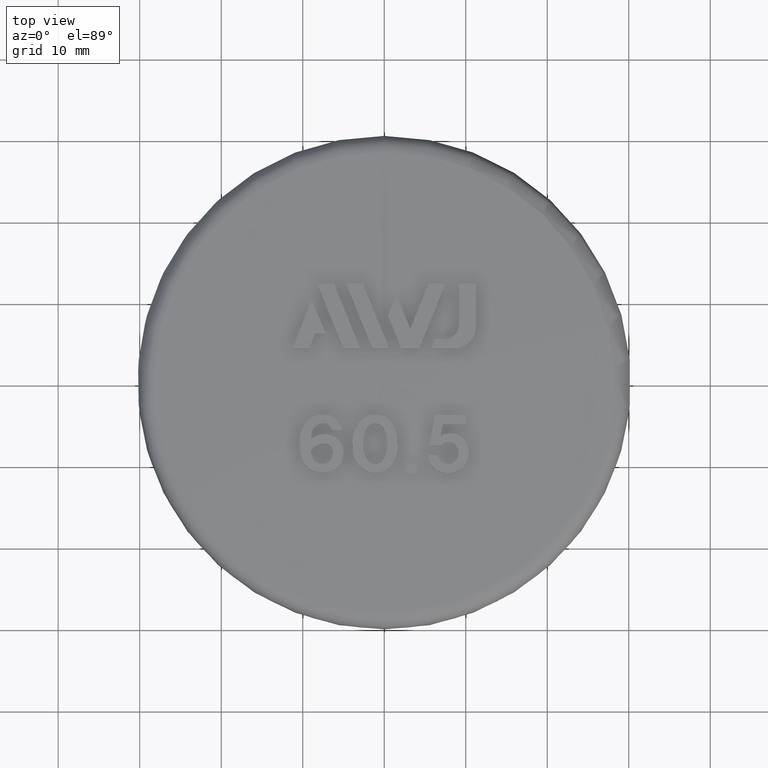
[diagram: clean part render]
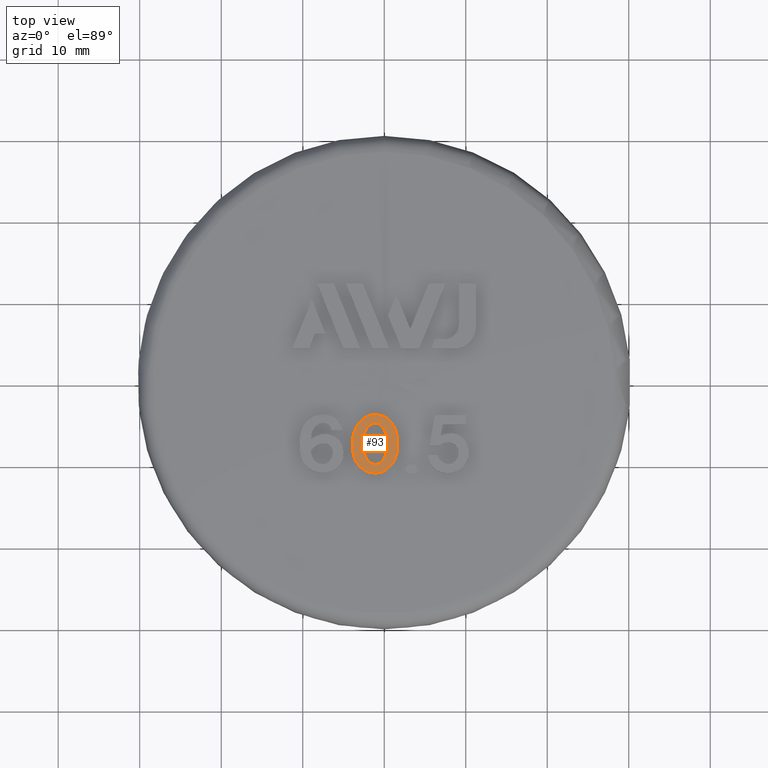
[diagram: same view with one face highlighted and labeled with its STEP entity id]
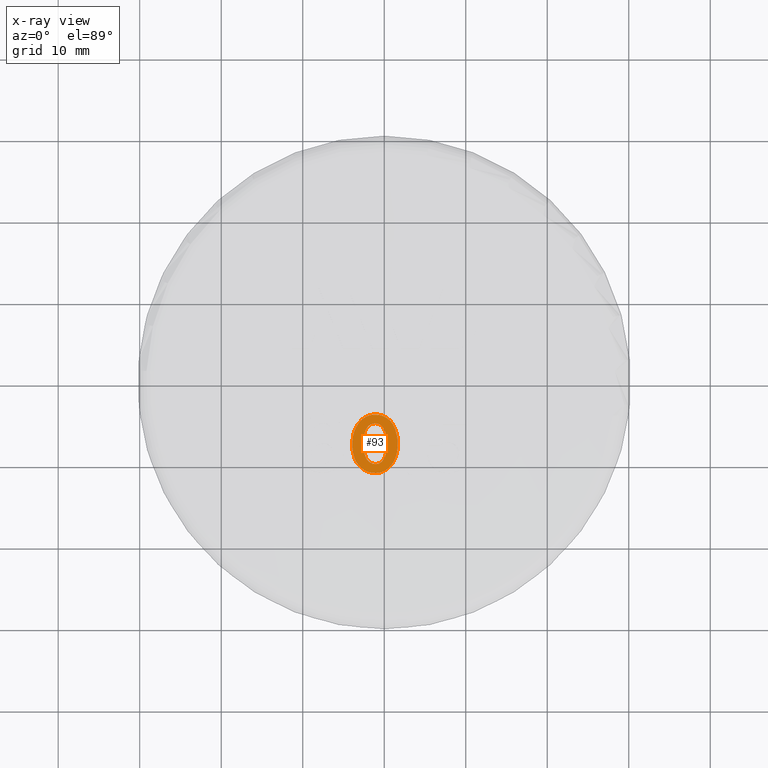
[diagram: x-ray of the same camera — body ghosted, the highlighted face saturated]
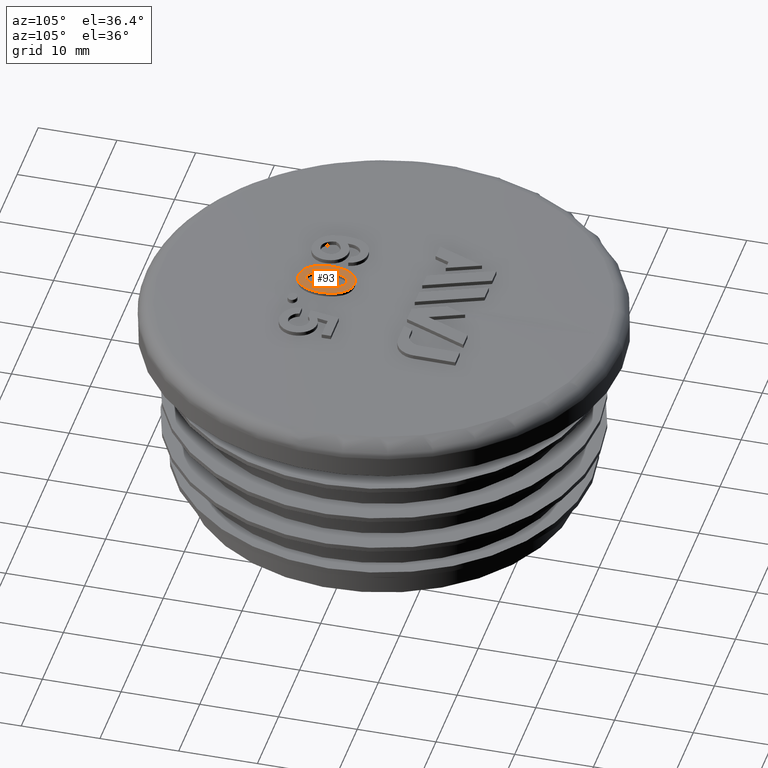
[diagram: same view with one face highlighted and labeled with its STEP entity id]
A machine part, top view. The second image highlights one B-rep face of the part: STEP entity #93.
The next image is the same camera in x-ray: the body ghosted, the highlighted face saturated — about 0% of this face is hidden behind the body in this view.
A second angle (auxiliary view) of the same face is appended — the face is thin or edge-on in the first view.
In plain terms, the highlighted face is a freeform B-spline surface patch.
Its self-contained STEP definition (entity closure, byte-faithful):
#93 = ADVANCED_FACE( '', ( #209, #210 ), #211, .T. );
#209 = FACE_BOUND( '', #540, .T. );
#210 = FACE_OUTER_BOUND( '', #541, .T. );
#211 = ( B_SPLINE_SURFACE( 3, 3, ( ( #543, #544, #545, #546 ), ( #547, #548, #549, #550 ), ( #551, #552, #553, #554 ), ( #555, #556, #557, #558 ) ), .UNSPECIFIED., .F., .F., .F. )B_SPLINE_SURFACE_WITH_KNOTS( ( 4, 4 ), ( 4, 4 ), ( 5.71022025068341, 6.53317283145282 ), ( 1.55908533473820, 1.56814544574028 ), .UNSPECIFIED. )RATIONAL_B_SPLINE_SURFACE( ( ( 1.00000000000000, 0.944354240340368, 0.944354240340368, 1.00000000000000 ), ( 0.999993159544084, 0.944347780526818, 0.944347780526818, 0.999993159544084 ), ( 0.999993159544084, 0.944347780526818, 0.944347780526818, 0.999993159544084 ), ( 1.00000000000000, 0.944354240340368, 0.944354240340368, 1.00000000000000 ) ) )BOUNDED_SURFACE(  )REPRESENTATION_ITEM( '' )GEOMETRIC_REPRESENTATION_ITEM(  )SURFACE(  ) );
#540 = EDGE_LOOP( '', ( #1057 ) );
#541 = EDGE_LOOP( '', ( #1058 ) );
#543 = CARTESIAN_POINT( '', ( -2.18371429090602, -3.38476522290990, 27.4994579721572 ) );
#544 = CARTESIAN_POINT( '', ( -1.22801340463189, -4.00134496943488, 27.4994579721572 ) );
#545 = CARTESIAN_POINT( '', ( -0.105474590892572, -4.18421481248914, 27.4994579721572 ) );
#546 = CARTESIAN_POINT( '', ( 0.996508575198104, -3.90284695806588, 27.4994579721572 ) );
#547 = CARTESIAN_POINT( '', ( -3.49432514796057, -5.41621689596086, 27.4930493477690 ) );
#548 = CARTESIAN_POINT( '', ( -1.96503642427395, -6.40285242927117, 27.4930493477690 ) );
#549 = CARTESIAN_POINT( '', ( -0.168777809881829, -6.69547619147724, 27.4930493477690 ) );
#550 = CARTESIAN_POINT( '', ( 1.59458816978679, -6.24523836795183, 27.4930493477690 ) );
#551 = CARTESIAN_POINT( '', ( -4.80490681861665, -7.44762332998633, 27.4756892389666 ) );
#552 = CARTESIAN_POINT( '', ( -2.70204303092247, -8.80430640919521, 27.4756892389666 ) );
#553 = CARTESIAN_POINT( '', ( -0.232079619152123, -9.20668164640914, 27.4756892389666 ) );
#554 = CARTESIAN_POINT( '', ( 2.19265444555603, -8.58757761439912, 27.4756892389666 ) );
#555 = CARTESIAN_POINT( '', ( -6.11543240794584, -9.47894283774782, 27.4473780020033 ) );
#556 = CARTESIAN_POINT( '', ( -3.43901810019385, -11.2056576280867, 27.4473780020033 ) );
#557 = CARTESIAN_POINT( '', ( -0.295378719663753, -11.7177796439142, 27.4473780020033 ) );
#558 = CARTESIAN_POINT( '', ( 2.79069512936785, -10.9298166294027, 27.4473780020033 ) );
#1057 = ORIENTED_EDGE( '', *, *, #1600, .T. );
#1058 = ORIENTED_EDGE( '', *, *, #1593, .T. );
#1593 = EDGE_CURVE( '', #1814, #1814, #1815, .T. );
#1600 = EDGE_CURVE( '', #1828, #1828, #1829, .T. );
#1814 = VERTEX_POINT( '', #2747 );
#1815 = B_SPLINE_CURVE_WITH_KNOTS( '', 3, ( #2748, #2749, #2750, #2751, #2752, #2753, #2754, #2755, #2756, #2757, #2758, #2759, #2760, #2761, #2762, #2763, #2764, #2765, #2766, #2767, #2768, #2769, #2770, #2771, #2772, #2773, #2774, #2775, #2776, #2777, #2778, #2779, #2780, #2781, #2782, #2783, #2784, #2785, #2786, #2787, #2788, #2789, #2790, #2791, #2792, #2793, #2794, #2795, #2796, #2797, #2798, #2799, #2800, #2801, #2802, #2803, #2804, #2805, #2806, #2807 ), .UNSPECIFIED., .T., .F., ( 2, 2, 2, 2, 2, 2, 2, 2, 2, 2, 2, 2, 2, 2, 2, 2, 2, 2, 2, 2, 2, 2, 2, 2, 2, 2, 2, 2, 2, 2, 2, 2 ), ( -0.000633016557694239, 0.000000000000000, 0.000633016557694242, 0.00126603311538848, 0.00189904967308273, 0.00253206623077697, 0.00316508278847121, 0.00379809934616546, 0.00443111590385970, 0.00506413246155394, 0.00569714901924819, 0.00633016557694243, 0.00759619869233091, 0.00886223180771939, 0.0101282649231079, 0.0107612814808021, 0.0113942980384964, 0.0120273145961906, 0.0126603311538848, 0.0132933477115791, 0.0139263642692733, 0.0145593808269675, 0.0151923973846618, 0.0158254139423560, 0.0164584305000503, 0.0170914470577445, 0.0177244636154387, 0.0183574801731330, 0.0189904967308272, 0.0196235132885215, 0.0202565298462157, 0.0208895464039099 ), .UNSPECIFIED. );
#1828 = VERTEX_POINT( '', #2962 );
#1829 = B_SPLINE_CURVE_WITH_KNOTS( '', 3, ( #2963, #2964, #2965, #2966, #2967, #2968, #2969, #2970, #2971, #2972, #2973, #2974, #2975, #2976, #2977, #2978, #2979, #2980, #2981, #2982, #2983, #2984, #2985, #2986, #2987, #2988, #2989, #2990, #2991, #2992, #2993, #2994, #2995, #2996, #2997, #2998, #2999, #3000, #3001, #3002, #3003, #3004, #3005, #3006, #3007, #3008, #3009, #3010, #3011, #3012, #3013, #3014, #3015, #3016, #3017, #3018 ), .UNSPECIFIED., .T., .F., ( 2, 2, 2, 2, 2, 2, 2, 2, 2, 2, 2, 2, 2, 2, 2, 2, 2, 2, 2, 2, 2, 2, 2, 2, 2, 2, 2, 2, 2, 2 ), ( -0.000400825170484739, 0.000000000000000, 0.000801650340969488, 0.00160330068193898, 0.00240495102290846, 0.00320660136387795, 0.00360742653436270, 0.00380783911960507, 0.00400825170484744, 0.00440907687533218, 0.00480990204581693, 0.00501031463105930, 0.00521072721630167, 0.00561155238678642, 0.00601237755727116, 0.00641320272775590, 0.00721485306872539, 0.00801650340969488, 0.00881815375066437, 0.00921897892114911, 0.00961980409163385, 0.0100206292621186, 0.0104214544326033, 0.0108222796030881, 0.0112231047735728, 0.0116239299440576, 0.0120247551145423, 0.0124255802850270, 0.0128264054555118, 0.0136280557964813 ), .UNSPECIFIED. );
#2747 = CARTESIAN_POINT( '', ( -3.04842238185540, -10.3116909243037, 27.4533832243951 ) );
#2748 = CARTESIAN_POINT( '', ( -3.19290699355983, -10.1542397591810, 27.4545993099214 ) );
#2749 = CARTESIAN_POINT( '', ( -2.90393777015097, -10.4691420894264, 27.4521671388689 ) );
#2750 = CARTESIAN_POINT( '', ( -2.74536649273890, -10.6087890648275, 27.4511103614354 ) );
#2751 = CARTESIAN_POINT( '', ( -2.39511859422427, -10.8462413209290, 27.4494082363956 ) );
#2752 = CARTESIAN_POINT( '', ( -2.20209693001147, -10.9434560341540, 27.4487703237804 ) );
#2753 = CARTESIAN_POINT( '', ( -1.80414000635250, -11.0825724632227, 27.4480085065518 ) );
#2754 = CARTESIAN_POINT( '', ( -1.59435657391694, -11.1267427109386, 27.4478697509002 ) );
#2755 = CARTESIAN_POINT( '', ( -1.17134165138204, -11.1678406583111, 27.4480013188314 ) );
#2756 = CARTESIAN_POINT( '', ( -0.959735754143667, -11.1677508992983, 27.4482365542884 ) );
#2757 = CARTESIAN_POINT( '', ( -0.536269868590179, -11.1142883971380, 27.4491818256569 ) );
#2758 = CARTESIAN_POINT( '', ( -0.330177364438999, -11.0604193419320, 27.4498924465149 ) );
#2759 = CARTESIAN_POINT( '', ( 0.0603202126352466, -10.8955639925039, 27.4518152772986 ) );
#2760 = CARTESIAN_POINT( '', ( 0.245079282788436, -10.7836497989324, 27.4530361373848 ) );
#2761 = CARTESIAN_POINT( '', ( 0.575769057671578, -10.5195545800972, 27.4557828136113 ) );
#2762 = CARTESIAN_POINT( '', ( 0.725892855279553, -10.3645629654687, 27.4573373387661 ) );
#2763 = CARTESIAN_POINT( '', ( 0.989250686226056, -10.0339560719665, 27.4605357936361 ) );
#2764 = CARTESIAN_POINT( '', ( 1.10457184339965, -9.85741893227247, 27.4621900899623 ) );
#2765 = CARTESIAN_POINT( '', ( 1.30263822707930, -9.48197303777242, 27.4655988153815 ) );
#2766 = CARTESIAN_POINT( '', ( 1.38452150640827, -9.28403178242113, 27.4673431531652 ) );
#2767 = CARTESIAN_POINT( '', ( 1.51355556339591, -8.88148902618448, 27.4707790164904 ) );
#2768 = CARTESIAN_POINT( '', ( 1.56165216591726, -8.67512767352376, 27.4724864068496 ) );
#2769 = CARTESIAN_POINT( '', ( 1.66369522245911, -8.04388991857890, 27.4775260803410 ) );
#2770 = CARTESIAN_POINT( '', ( 1.67458674245014, -7.62375502232563, 27.4806412469591 ) );
#2771 = CARTESIAN_POINT( '', ( 1.62287325459414, -6.78437150801221, 27.4863261724706 ) );
#2772 = CARTESIAN_POINT( '', ( 1.55342561481026, -6.35974337426098, 27.4889297054596 ) );
#2773 = CARTESIAN_POINT( '', ( 1.28657751251807, -5.55983462015490, 27.4933584917443 ) );
#2774 = CARTESIAN_POINT( '', ( 1.08375040337603, -5.17687746757123, 27.4952232029232 ) );
#2775 = CARTESIAN_POINT( '', ( 0.674539762005006, -4.69152701326968, 27.4972799537164 ) );
#2776 = CARTESIAN_POINT( '', ( 0.516668457033430, -4.54357750963351, 27.4978493266724 ) );
#2777 = CARTESIAN_POINT( '', ( 0.170448395019537, -4.30117918138700, 27.4986977779762 ) );
#2778 = CARTESIAN_POINT( '', ( -0.0227310987284853, -4.20365150950744, 27.4989893130002 ) );
#2779 = CARTESIAN_POINT( '', ( -0.424324645598556, -4.06769414881777, 27.4993079376488 ) );
#2780 = CARTESIAN_POINT( '', ( -0.634334439332787, -4.02769832675785, 27.4993411319191 ) );
#2781 = CARTESIAN_POINT( '', ( -1.05938492094780, -3.99499135264028, 27.4991882190705 ) );
#2782 = CARTESIAN_POINT( '', ( -1.27131473935859, -3.99997223569172, 27.4990103206219 ) );
#2783 = CARTESIAN_POINT( '', ( -1.69375856882397, -4.06066304587274, 27.4984052593794 ) );
#2784 = CARTESIAN_POINT( '', ( -1.89971884441893, -4.11712914282614, 27.4979790841166 ) );
#2785 = CARTESIAN_POINT( '', ( -2.28872150040688, -4.28478308777731, 27.4968520554420 ) );
#2786 = CARTESIAN_POINT( '', ( -2.47354784992128, -4.39753504728928, 27.4961409852866 ) );
#2787 = CARTESIAN_POINT( '', ( -2.80365392297517, -4.66246659742122, 27.4944943344254 ) );
#2788 = CARTESIAN_POINT( '', ( -2.95347189316242, -4.81761990915494, 27.4935389799865 ) );
#2789 = CARTESIAN_POINT( '', ( -3.21636710855783, -5.14985922134319, 27.4914594765452 ) );
#2790 = CARTESIAN_POINT( '', ( -3.33161581531729, -5.32649506231322, 27.4903343760806 ) );
#2791 = CARTESIAN_POINT( '', ( -3.53213163382783, -5.69923045238419, 27.4879135041378 ) );
#2792 = CARTESIAN_POINT( '', ( -3.61712085471698, -5.89660972013788, 27.4866103065302 ) );
#2793 = CARTESIAN_POINT( '', ( -3.75305378933776, -6.29755307604276, 27.4839151096328 ) );
#2794 = CARTESIAN_POINT( '', ( -3.80495624153211, -6.50251533053310, 27.4825141415195 ) );
#2795 = CARTESIAN_POINT( '', ( -3.88092935069254, -6.92021987933224, 27.4796003039515 ) );
#2796 = CARTESIAN_POINT( '', ( -3.90474179959599, -7.13257101321277, 27.4780895259802 ) );
#2797 = CARTESIAN_POINT( '', ( -3.92826774357623, -7.55369033554438, 27.4750224149330 ) );
#2798 = CARTESIAN_POINT( '', ( -3.92853213254674, -7.76388634861742, 27.4734551021191 ) );
#2799 = CARTESIAN_POINT( '', ( -3.90881393770368, -8.18363794613862, 27.4702466447690 ) );
#2800 = CARTESIAN_POINT( '', ( -3.88739043614922, -8.39314803749031, 27.4686114218256 ) );
#2801 = CARTESIAN_POINT( '', ( -3.81410309177718, -8.81120596020367, 27.4653086091148 ) );
#2802 = CARTESIAN_POINT( '', ( -3.76186952016090, -9.01949929798706, 27.4636429188461 ) );
#2803 = CARTESIAN_POINT( '', ( -3.62287947523192, -9.41896395889241, 27.4604432080077 ) );
#2804 = CARTESIAN_POINT( '', ( -3.53590898166093, -9.61192024357812, 27.4588953307253 ) );
#2805 = CARTESIAN_POINT( '', ( -3.31996118578587, -9.98154509804572, 27.4559572287628 ) );
#2806 = CARTESIAN_POINT( '', ( -3.19290699355983, -10.1542397591810, 27.4545993099214 ) );
#2807 = CARTESIAN_POINT( '', ( -2.90393777015097, -10.4691420894264, 27.4521671388689 ) );
#2962 = CARTESIAN_POINT( '', ( -2.30944602272726, -9.15020245785239, 27.4668433678613 ) );
#2963 = CARTESIAN_POINT( '', ( -2.25389525207695, -9.27364861485309, 27.4658451484860 ) );
#2964 = CARTESIAN_POINT( '', ( -2.42054756402789, -8.90331014385101, 27.4688398066119 ) );
#2965 = CARTESIAN_POINT( '', ( -2.49489454504552, -8.64659298635051, 27.4708857062754 ) );
#2966 = CARTESIAN_POINT( '', ( -2.58885147095961, -8.11852637196272, 27.4749789111426 ) );
#2967 = CARTESIAN_POINT( '', ( -2.60770721423611, -7.84831078737530, 27.4770150963201 ) );
#2968 = CARTESIAN_POINT( '', ( -2.60500720737634, -7.31594214902112, 27.4808656180047 ) );
#2969 = CARTESIAN_POINT( '', ( -2.58649438044594, -7.05075154797628, 27.4826975618636 ) );
#2970 = CARTESIAN_POINT( '', ( -2.50266218512813, -6.52308101118082, 27.4861913770296 ) );
#2971 = CARTESIAN_POINT( '', ( -2.43544338527539, -6.25876955311609, 27.4878655707210 ) );
#2972 = CARTESIAN_POINT( '', ( -2.27905378573648, -5.88541246280287, 27.4901605918215 ) );
#2973 = CARTESIAN_POINT( '', ( -2.21738884653907, -5.76449419480633, 27.4908919440362 ) );
#2974 = CARTESIAN_POINT( '', ( -2.11032962215435, -5.59404464661552, 27.4919122869682 ) );
#2975 = CARTESIAN_POINT( '', ( -2.07248431365258, -5.53863509632583, 27.4922412345649 ) );
#2976 = CARTESIAN_POINT( '', ( -1.98734285718319, -5.43397527454074, 27.4928703782075 ) );
#2977 = CARTESIAN_POINT( '', ( -1.93988058408365, -5.38419686180528, 27.4931730678198 ) );
#2978 = CARTESIAN_POINT( '', ( -1.78716768477090, -5.25100750540485, 27.4940016497557 ) );
#2979 = CARTESIAN_POINT( '', ( -1.66752765715677, -5.18133490481537, 27.4944650817342 ) );
#2980 = CARTESIAN_POINT( '', ( -1.41268790171653, -5.09285894722148, 27.4951471199897 ) );
#2981 = CARTESIAN_POINT( '', ( -1.27594600447556, -5.07280403403736, 27.4953734243196 ) );
#2982 = CARTESIAN_POINT( '', ( -1.07423030960067, -5.07042104881175, 27.4955651525016 ) );
#2983 = CARTESIAN_POINT( '', ( -1.00715327237049, -5.07403730232252, 27.4956057306810 ) );
#2984 = CARTESIAN_POINT( '', ( -0.873259044489891, -5.08836506200900, 27.4956475861918 ) );
#2985 = CARTESIAN_POINT( '', ( -0.805632806188880, -5.10106317831787, 27.4956413861939 ) );
#2986 = CARTESIAN_POINT( '', ( -0.611434528910669, -5.16152351536294, 27.4955105972745 ) );
#2987 = CARTESIAN_POINT( '', ( -0.491529512178503, -5.23046903239462, 27.4952801449561 ) );
#2988 = CARTESIAN_POINT( '', ( -0.284906477937844, -5.40551917492941, 27.4945973039362 ) );
#2989 = CARTESIAN_POINT( '', ( -0.196665384491857, -5.51155678304671, 27.4941449929626 ) );
#2990 = CARTESIAN_POINT( '', ( -0.0476130546174092, -5.73608316700527, 27.4931171161535 ) );
#2991 = CARTESIAN_POINT( '', ( 0.0146034134915287, -5.85574888776896, 27.4925372986568 ) );
#2992 = CARTESIAN_POINT( '', ( 0.177730742527274, -6.22889102167937, 27.4906285518962 ) );
#2993 = CARTESIAN_POINT( '', ( 0.250973764199726, -6.48693191369732, 27.4891802793064 ) );
#2994 = CARTESIAN_POINT( '', ( 0.343638165331497, -7.01583594065028, 27.4859528832312 ) );
#2995 = CARTESIAN_POINT( '', ( 0.362657868777261, -7.28758485124808, 27.4841649139983 ) );
#2996 = CARTESIAN_POINT( '', ( 0.360364305677315, -7.82223066989889, 27.4803913110169 ) );
#2997 = CARTESIAN_POINT( '', ( 0.341497631026207, -8.08811109671280, 27.4783873560609 ) );
#2998 = CARTESIAN_POINT( '', ( 0.283498131616427, -8.48451425793466, 27.4752113736541 ) );
#2999 = CARTESIAN_POINT( '', ( 0.258716181680132, -8.61620514965955, 27.4741247906383 ) );
#3000 = CARTESIAN_POINT( '', ( 0.193761574019991, -8.87833442575097, 27.4718986477849 ) );
#3001 = CARTESIAN_POINT( '', ( 0.153431545993979, -9.00875074488122, 27.4707586091683 ) );
#3002 = CARTESIAN_POINT( '', ( 0.0538543046806648, -9.25847594104145, 27.4685139535304 ) );
#3003 = CARTESIAN_POINT( '', ( -0.00557218654758959, -9.37876355516925, 27.4674012872212 ) );
#3004 = CARTESIAN_POINT( '', ( -0.151638993368081, -9.60642096500037, 27.4652321348477 ) );
#3005 = CARTESIAN_POINT( '', ( -0.237803288671291, -9.71434109892887, 27.4641693764334 ) );
#3006 = CARTESIAN_POINT( '', ( -0.439677545400162, -9.89627228731221, 27.4623049135381 ) );
#3007 = CARTESIAN_POINT( '', ( -0.556633919584343, -9.97018552145724, 27.4615038917928 ) );
#3008 = CARTESIAN_POINT( '', ( -0.810713143486295, -10.0642828728256, 27.4603740508629 ) );
#3009 = CARTESIAN_POINT( '', ( -0.948143090415317, -10.0845324496520, 27.4600445133205 ) );
#3010 = CARTESIAN_POINT( '', ( -1.22131592826264, -10.0781861040333, 27.4598088183278 ) );
#3011 = CARTESIAN_POINT( '', ( -1.35625025414700, -10.0550915415374, 27.4598684178015 ) );
#3012 = CARTESIAN_POINT( '', ( -1.61459119888325, -9.96225353053115, 27.4604214678271 ) );
#3013 = CARTESIAN_POINT( '', ( -1.73171659336499, -9.89427181127538, 27.4609069057591 ) );
#3014 = CARTESIAN_POINT( '', ( -1.94270835581564, -9.72042520035983, 27.4622382592183 ) );
#3015 = CARTESIAN_POINT( '', ( -2.03262575151142, -9.61802596608693, 27.4630565256354 ) );
#3016 = CARTESIAN_POINT( '', ( -2.18772565510811, -9.39559321381215, 27.4648523728785 ) );
#3017 = CARTESIAN_POINT( '', ( -2.25389525207695, -9.27364861485309, 27.4658451484860 ) );
#3018 = CARTESIAN_POINT( '', ( -2.42054756402789, -8.90331014385101, 27.4688398066119 ) );